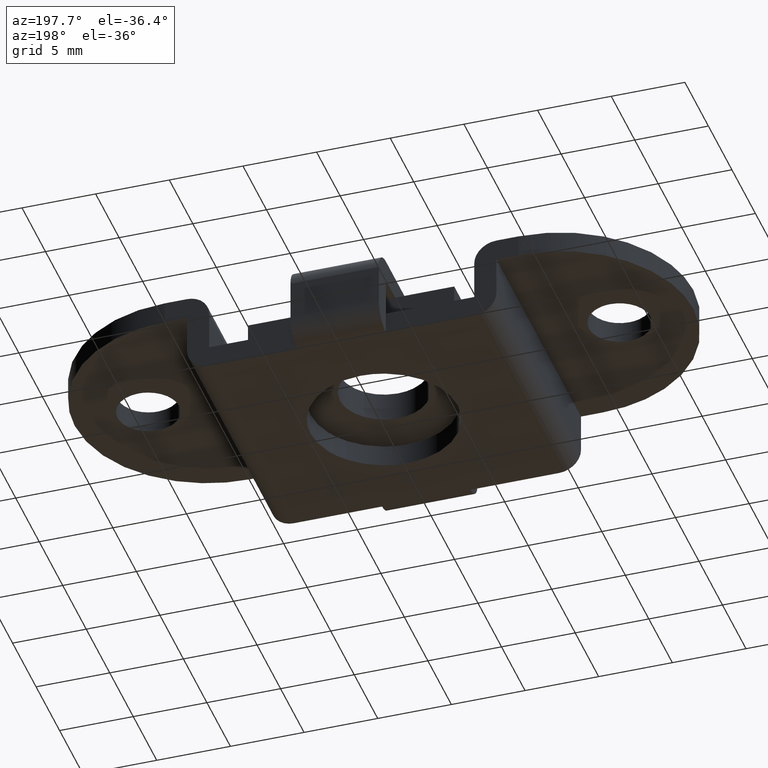
[diagram: clean part render]
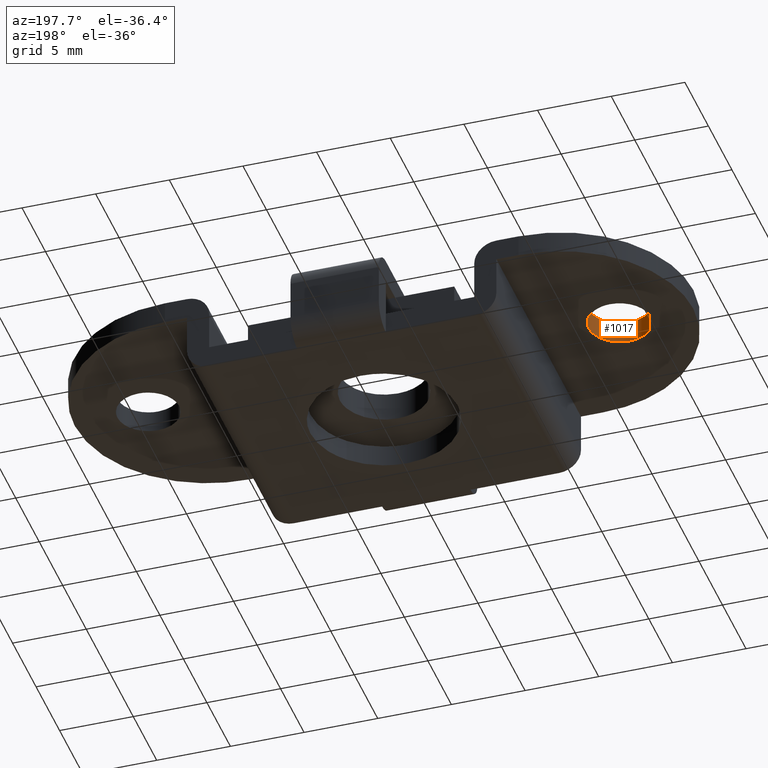
[diagram: same view with one face highlighted and labeled with its STEP entity id]
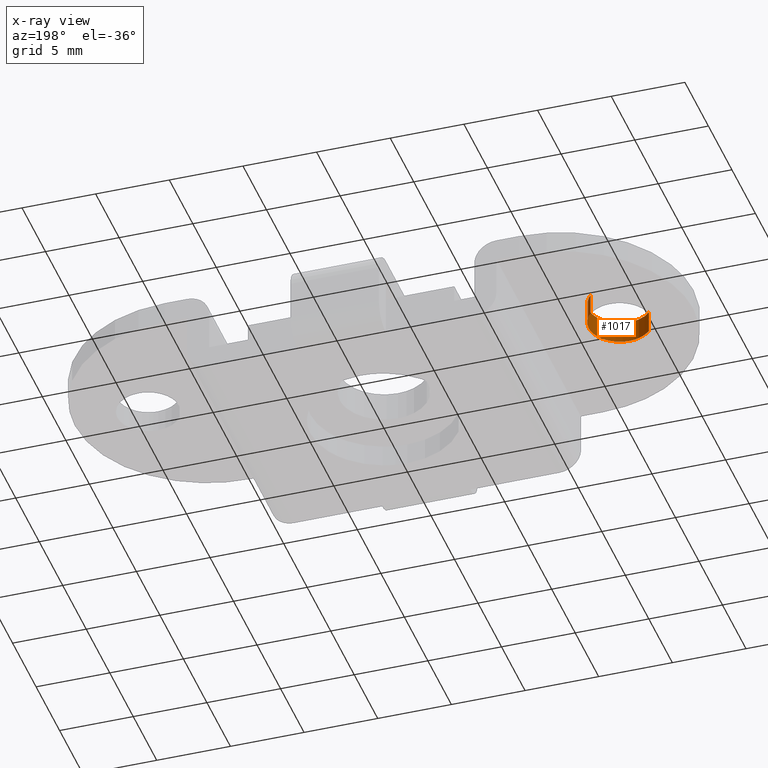
[diagram: x-ray of the same camera — body ghosted, the highlighted face saturated]
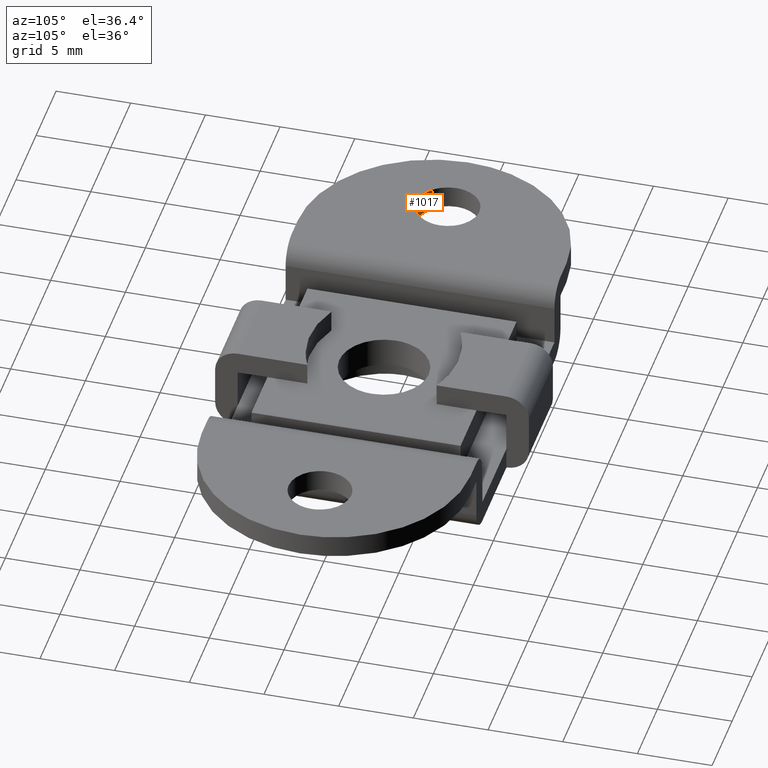
[diagram: same view with one face highlighted and labeled with its STEP entity id]
A machine part, auxiliary view. The second image highlights one B-rep face of the part: STEP entity #1017.
The next image is the same camera in x-ray: the body ghosted, the highlighted face saturated — about 0% of this face is hidden behind the body in this view.
A second angle (auxiliary view) of the same face is appended — the face is thin or edge-on in the first view.
In plain terms, the highlighted face is a freeform B-spline surface patch.
Its self-contained STEP definition (entity closure, byte-faithful):
#825=CARTESIAN_POINT('',(-14.476713900647679,1.445544507287878,4.200000000002685));
#826=VERTEX_POINT('',#825);
#839=CARTESIAN_POINT('',(-14.476713900802160,1.445544507450665,5.699999999999999));
#840=VERTEX_POINT('',#839);
#841=CARTESIAN_POINT('',(-14.476713900647679,1.445544507287878,4.200000000002685));
#842=CARTESIAN_POINT('',(-14.476713900802160,1.445544507450665,5.699999999999999));
#843=QUASI_UNIFORM_CURVE('',1,(#841,#842),.UNSPECIFIED.,.F.,.U.);
#844=EDGE_CURVE('',#826,#840,#843,.T.);
#873=CARTESIAN_POINT('',(-17.523286099197840,-1.445544507450659,5.700000000000000));
#874=VERTEX_POINT('',#873);
#885=CARTESIAN_POINT('',(-17.523286099352319,-1.445544507287873,4.200000000002685));
#886=VERTEX_POINT('',#885);
#887=CARTESIAN_POINT('',(-17.523286099352319,-1.445544507287873,4.200000000002685));
#888=CARTESIAN_POINT('',(-17.523286099197840,-1.445544507450659,5.700000000000000));
#889=QUASI_UNIFORM_CURVE('',1,(#887,#888),.UNSPECIFIED.,.F.,.U.);
#890=EDGE_CURVE('',#886,#874,#889,.T.);
#921=CARTESIAN_POINT('',(-17.523286179125812,-1.445544608956883,4.162499999999866));
#922=CARTESIAN_POINT('',(-16.077741570168929,-2.968830788082685,4.162499999999866));
#923=CARTESIAN_POINT('',(-14.554455391043120,-1.523286179125803,4.162499999999866));
#924=CARTESIAN_POINT('',(-13.031169211917316,-0.077741570168921,4.162499999999866));
#925=CARTESIAN_POINT('',(-14.476713820874201,1.445544608956883,4.162499999999866));
#926=CARTESIAN_POINT('',(-17.523286179125812,-1.445544608956883,5.738437500000003));
#927=CARTESIAN_POINT('',(-16.077741570168929,-2.968830788082685,5.738437500000003));
#928=CARTESIAN_POINT('',(-14.554455391043120,-1.523286179125803,5.738437500000003));
#929=CARTESIAN_POINT('',(-13.031169211917316,-0.077741570168921,5.738437500000003));
#930=CARTESIAN_POINT('',(-14.476713820874201,1.445544608956883,5.738437500000003));
#938=(BOUNDED_SURFACE()B_SPLINE_SURFACE(2,1,((#921,#926),(#922,#927),(#923,#928),(#924,#929),(#925,#930)),.UNSPECIFIED.,.F.,.F.,.U.)B_SPLINE_SURFACE_WITH_KNOTS((3,2,3),(2,2),(0.0,3.479393923934003,6.958787847868006),(0.0,1.0),.UNSPECIFIED.)GEOMETRIC_REPRESENTATION_ITEM()RATIONAL_B_SPLINE_SURFACE(((1.0,1.0),(0.707106781186548,0.707106781186548),(1.0,1.0),(0.707106781186548,0.707106781186548),(1.0,1.0)))REPRESENTATION_ITEM('')SURFACE());
#939=CARTESIAN_POINT('',(-13.900000000000000,0.0,4.199999999999870));
#940=VERTEX_POINT('',#939);
#941=CARTESIAN_POINT('',(-13.900000000000000,0.0,4.199999999999870));
#942=CARTESIAN_POINT('',(-13.899973720538410,0.149473633320658,4.200000000000168));
#943=CARTESIAN_POINT('',(-13.927607591674001,0.406886191171341,4.200000000000643));
#944=CARTESIAN_POINT('',(-14.037393853083699,0.773939174137046,4.200000000001388));
#945=CARTESIAN_POINT('',(-14.206511871971900,1.118130529014322,4.200000000002074));
#946=CARTESIAN_POINT('',(-14.373807492829370,1.337136670077123,4.200000000002424));
#947=CARTESIAN_POINT('',(-14.476713900647679,1.445544507287878,4.200000000002685));
#948=B_SPLINE_CURVE_WITH_KNOTS('',3,(#941,#942,#943,#944,#945,#946,#947),.UNSPECIFIED.,.F.,.U.,(4,1,1,1,4),(0.000000010959318,0.448416419932808,0.772278667828117,1.145951143493711,1.594367552460679),.UNSPECIFIED.);
#949=EDGE_CURVE('',#940,#826,#948,.T.);
#950=ORIENTED_EDGE('',*,*,#949,.F.);
#951=CARTESIAN_POINT('',(-15.999999487898320,-2.099999999999938,4.199999999999870));
#952=VERTEX_POINT('',#951);
#953=CARTESIAN_POINT('',(-15.999999487898320,-2.099999999999938,4.199999999999870));
#954=CARTESIAN_POINT('',(-15.871146756476829,-2.100009391926829,4.199999999999876));
#955=CARTESIAN_POINT('',(-15.579069793968619,-2.073056604146372,4.199999999999870));
#956=CARTESIAN_POINT('',(-15.199083714982519,-1.955235424761524,4.199999999999863));
#957=CARTESIAN_POINT('',(-14.819242523259250,-1.752218925114854,4.199999999999888));
#958=CARTESIAN_POINT('',(-14.503453316655740,-1.496274348695488,4.199999999999815));
#959=CARTESIAN_POINT('',(-14.222986806625091,-1.145835393300425,4.199999999999985));
#960=CARTESIAN_POINT('',(-14.030372438877381,-0.768973838358699,4.199999999999634));
#961=CARTESIAN_POINT('',(-13.922191201513760,-0.377968447032313,4.200000000000055));
#962=CARTESIAN_POINT('',(-13.899992112609549,-0.120260681584738,4.199999999999730));
#963=CARTESIAN_POINT('',(-13.900000000000000,0.0,4.199999999999870));
#964=B_SPLINE_CURVE_WITH_KNOTS('',3,(#953,#954,#955,#956,#957,#958,#959,#960,#961,#962,#963),.UNSPECIFIED.,.F.,.U.,(4,1,1,1,1,1,1,1,4),(0.000000046266399,0.386563756360412,0.876216372628762,1.185474047194867,1.675103511967079,2.087445731203625,2.525562153510227,2.937908026480077,3.298692695409619),.UNSPECIFIED.);
#965=EDGE_CURVE('',#952,#940,#964,.T.);
#966=ORIENTED_EDGE('',*,*,#965,.F.);
#967=CARTESIAN_POINT('',(-17.523286099352319,-1.445544507287873,4.200000000002685));
#968=CARTESIAN_POINT('',(-17.431641935819851,-1.542138163062824,4.200000000002520));
#969=CARTESIAN_POINT('',(-17.223170771685052,-1.723659901659075,4.200000000002128));
#970=CARTESIAN_POINT('',(-16.859239532543828,-1.932015604121356,4.200000000001452));
#971=CARTESIAN_POINT('',(-16.443820497797880,-2.068292419266050,4.200000000000695));
#972=CARTESIAN_POINT('',(-16.150904073822801,-2.100021754068151,4.200000000000149));
#973=CARTESIAN_POINT('',(-15.999999487898320,-2.099999999999938,4.199999999999870));
#974=B_SPLINE_CURVE_WITH_KNOTS('',3,(#967,#968,#969,#970,#971,#972,#973),.UNSPECIFIED.,.F.,.U.,(4,1,1,1,4),(0.000000013370095,0.399450990029573,0.825540147802814,1.251613939462105,1.704325912235111),.UNSPECIFIED.);
#975=EDGE_CURVE('',#886,#952,#974,.T.);
#976=ORIENTED_EDGE('',*,*,#975,.F.);
#977=ORIENTED_EDGE('',*,*,#890,.T.);
#978=CARTESIAN_POINT('',(-15.999999487898320,-2.099999999999938,5.700000000000000));
#979=VERTEX_POINT('',#978);
#980=CARTESIAN_POINT('',(-17.523286099197840,-1.445544507450659,5.700000000000000));
#981=CARTESIAN_POINT('',(-17.431641949486931,-1.542137640411951,5.699999999999992));
#982=CARTESIAN_POINT('',(-17.223169624313751,-1.723658990078199,5.700000000000014));
#983=CARTESIAN_POINT('',(-16.843757964454859,-1.940896776863872,5.700000000000014));
#984=CARTESIAN_POINT('',(-16.426074551988890,-2.072062016538134,5.699999999999949));
#985=CARTESIAN_POINT('',(-16.133148976420149,-2.100011490689612,5.700000000000022));
#986=CARTESIAN_POINT('',(-15.999999487898320,-2.099999999999938,5.700000000000000));
#987=B_SPLINE_CURVE_WITH_KNOTS('',3,(#980,#981,#982,#983,#984,#985,#986),.UNSPECIFIED.,.F.,.U.,(4,1,1,1,4),(0.000000013369385,0.399450989976564,0.825540147693789,1.304874935396144,1.704325912010689),.UNSPECIFIED.);
#988=EDGE_CURVE('',#874,#979,#987,.T.);
#989=ORIENTED_EDGE('',*,*,#988,.T.);
#990=CARTESIAN_POINT('',(-13.900000000000000,0.0,5.700000000000000));
#991=VERTEX_POINT('',#990);
#992=CARTESIAN_POINT('',(-15.999999487898320,-2.099999999999938,5.700000000000000));
#993=CARTESIAN_POINT('',(-15.871146813442810,-2.100009352253163,5.700000000000008));
#994=CARTESIAN_POINT('',(-15.579069460164741,-2.073056836228151,5.699999999999989));
#995=CARTESIAN_POINT('',(-15.199084391894351,-1.955235297415358,5.700000000000013));
#996=CARTESIAN_POINT('',(-14.819247095116800,-1.752214739977726,5.699999999999973));
#997=CARTESIAN_POINT('',(-14.463104890885219,-1.463625838826627,5.700000000000066));
#998=CARTESIAN_POINT('',(-14.179096144232339,-1.080672087322911,5.699999999999869));
#999=CARTESIAN_POINT('',(-13.958993124757949,-0.584044329764929,5.700000000000022));
#1000=CARTESIAN_POINT('',(-13.899838745501510,-0.231965859635390,5.700000000000009));
#1001=CARTESIAN_POINT('',(-13.900000000000000,0.0,5.700000000000000));
#1002=B_SPLINE_CURVE_WITH_KNOTS('',3,(#992,#993,#994,#995,#996,#997,#998,#999,#1000,#1001),.UNSPECIFIED.,.F.,.U.,(4,1,1,1,1,1,1,4),(0.000000046266399,0.386563756360412,0.876216372628762,1.185474047194867,1.675103511967079,2.242075191242816,2.602876301059142,3.298692695409619),.UNSPECIFIED.);
#1003=EDGE_CURVE('',#979,#991,#1002,.T.);
#1004=ORIENTED_EDGE('',*,*,#1003,.T.);
#1005=CARTESIAN_POINT('',(-13.900000000000000,0.0,5.700000000000000));
#1006=CARTESIAN_POINT('',(-13.899913623922449,0.199306220471404,5.699999999999999));
#1007=CARTESIAN_POINT('',(-13.948858090042400,0.539714856137857,5.699999999999992));
#1008=CARTESIAN_POINT('',(-14.149722724237270,1.034675310137287,5.700000000000028));
#1009=CARTESIAN_POINT('',(-14.345196025296600,1.307042677394675,5.699999999999966));
#1010=CARTESIAN_POINT('',(-14.476713900802160,1.445544507450665,5.699999999999999));
#1011=B_SPLINE_CURVE_WITH_KNOTS('',3,(#1005,#1006,#1007,#1008,#1009,#1010),.UNSPECIFIED.,.F.,.U.,(4,1,1,4),(0.000000010960096,0.597890909632484,1.021390557572129,1.594367552685096),.UNSPECIFIED.);
#1012=EDGE_CURVE('',#991,#840,#1011,.T.);
#1013=ORIENTED_EDGE('',*,*,#1012,.T.);
#1014=ORIENTED_EDGE('',*,*,#844,.F.);
#1015=EDGE_LOOP('',(#950,#966,#976,#977,#989,#1004,#1013,#1014));
#1016=FACE_OUTER_BOUND('',#1015,.T.);
#1017=ADVANCED_FACE('',(#1016),#938,.F.);